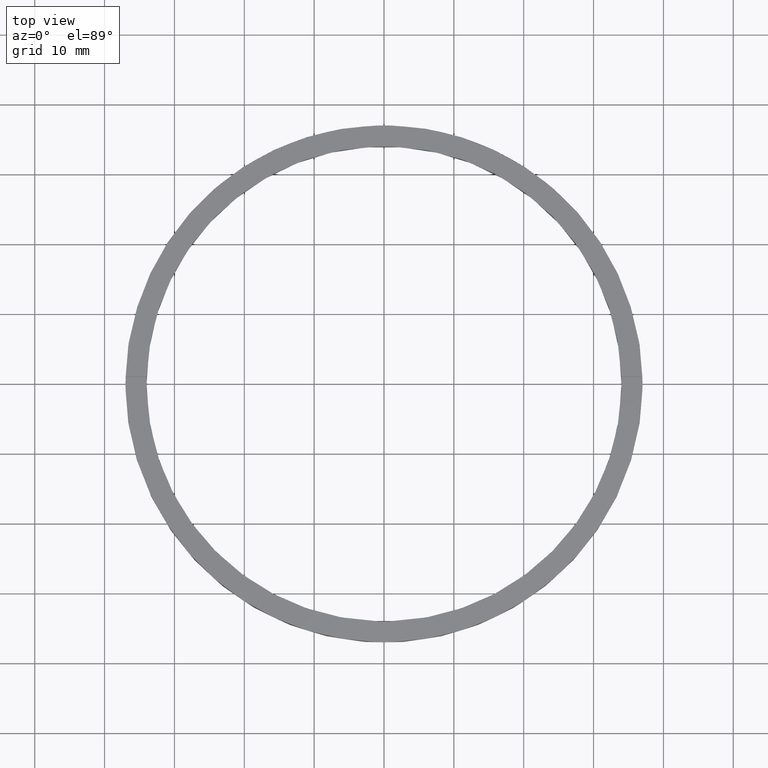
[diagram: clean part render]
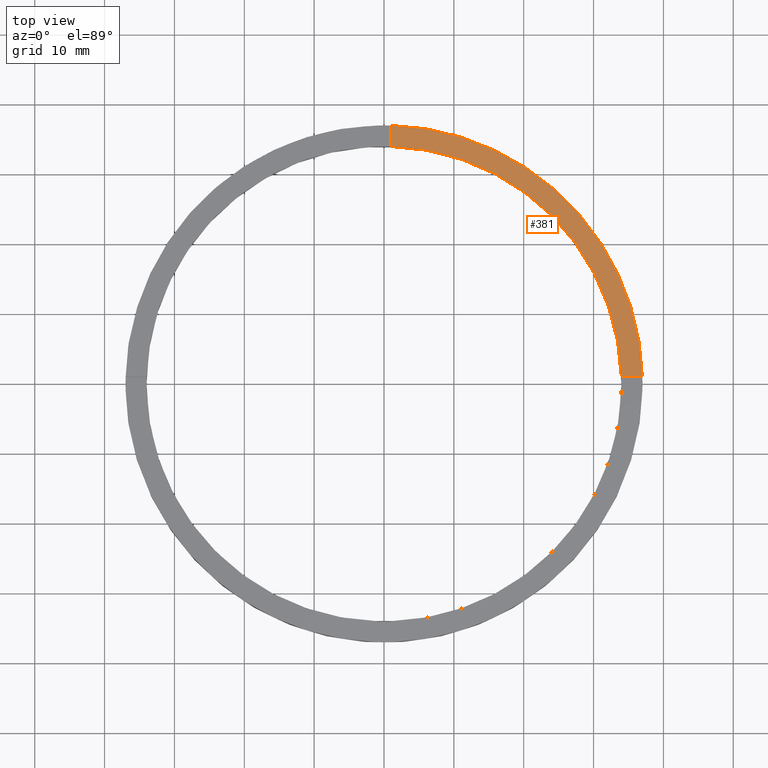
[diagram: same view with one face highlighted and labeled with its STEP entity id]
A machine part, top view. The second image highlights one B-rep face of the part: STEP entity #381.
In plain terms, the highlighted planar face has unit normal (0, 0, 1).
Its self-contained STEP definition (entity closure, byte-faithful):
#13 = CIRCLE ( 'NONE', #335, 34.00000000000000000 ) ;
#83 = VECTOR ( 'NONE', #625, 1000.000000000000000 ) ;
#87 = VECTOR ( 'NONE', #185, 1000.000000000000000 ) ;
#89 = LINE ( 'NONE', #305, #83 ) ;
#115 = VERTEX_POINT ( 'NONE', #705 ) ;
#127 = ORIENTED_EDGE ( 'NONE', *, *, #632, .F. ) ;
#140 = CARTESIAN_POINT ( 'NONE',  ( 0.9999999999999749090, 26.99999999999999645, 3.500000000000000000 ) ) ;
#161 = DIRECTION ( 'NONE',  ( 1.000000000000000000, 0.000000000000000000, 0.000000000000000000 ) ) ;
#185 = DIRECTION ( 'NONE',  ( 0.000000000000000000, 1.000000000000000000, 0.000000000000000000 ) ) ;
#211 = DIRECTION ( 'NONE',  ( 0.000000000000000000, 0.000000000000000000, 1.000000000000000000 ) ) ;
#216 = DIRECTION ( 'NONE',  ( 0.000000000000000000, 0.000000000000000000, 1.000000000000000000 ) ) ;
#220 = DIRECTION ( 'NONE',  ( 1.000000000000000000, 0.000000000000000000, -0.000000000000000000 ) ) ;
#261 = EDGE_CURVE ( 'NONE', #745, #492, #622, .T. ) ;
#280 = DIRECTION ( 'NONE',  ( 1.000000000000000000, 0.000000000000000000, 0.000000000000000000 ) ) ;
#297 = CARTESIAN_POINT ( 'NONE',  ( 0.000000000000000000, 0.000000000000000000, 3.500000000000000000 ) ) ;
#305 = CARTESIAN_POINT ( 'NONE',  ( 26.99999999999998934, 0.9999999999998416822, 3.500000000000000000 ) ) ;
#335 = AXIS2_PLACEMENT_3D ( 'NONE', #297, #216, #280 ) ;
#347 = AXIS2_PLACEMENT_3D ( 'NONE', #767, #211, #161 ) ;
#378 = ORIENTED_EDGE ( 'NONE', *, *, #261, .T. ) ;
#381 = ADVANCED_FACE ( 'NONE', ( #509 ), #661, .T. ) ;
#397 = VERTEX_POINT ( 'NONE', #752 ) ;
#401 = EDGE_LOOP ( 'NONE', ( #127, #656, #409, #378 ) ) ;
#409 = ORIENTED_EDGE ( 'NONE', *, *, #665, .F. ) ;
#476 = CARTESIAN_POINT ( 'NONE',  ( 0.9999999999999749090, 36.98648401781385786, 3.500000000000000000 ) ) ;
#492 = VERTEX_POINT ( 'NONE', #476 ) ;
#508 = AXIS2_PLACEMENT_3D ( 'NONE', #712, #743, #220 ) ;
#509 = FACE_OUTER_BOUND ( 'NONE', #401, .T. ) ;
#551 = EDGE_CURVE ( 'NONE', #397, #115, #13, .T. ) ;
#611 = LINE ( 'NONE', #140, #87 ) ;
#622 = CIRCLE ( 'NONE', #347, 37.00000000000000000 ) ;
#625 = DIRECTION ( 'NONE',  ( -1.000000000000000000, -6.505213034913025371E-17, -0.000000000000000000 ) ) ;
#632 = EDGE_CURVE ( 'NONE', #115, #492, #611, .T. ) ;
#656 = ORIENTED_EDGE ( 'NONE', *, *, #551, .F. ) ;
#661 = PLANE ( 'NONE',  #508 ) ;
#665 = EDGE_CURVE ( 'NONE', #745, #397, #89, .T. ) ;
#705 = CARTESIAN_POINT ( 'NONE',  ( 0.9999999999999749090, 33.98529093593285921, 3.500000000000000000 ) ) ;
#712 = CARTESIAN_POINT ( 'NONE',  ( 0.000000000000000000, 0.000000000000000000, 3.500000000000000000 ) ) ;
#723 = CARTESIAN_POINT ( 'NONE',  ( 36.98648401781386497, 0.9999999999998423483, 3.500000000000000000 ) ) ;
#743 = DIRECTION ( 'NONE',  ( 0.000000000000000000, 0.000000000000000000, 1.000000000000000000 ) ) ;
#745 = VERTEX_POINT ( 'NONE', #723 ) ;
#752 = CARTESIAN_POINT ( 'NONE',  ( 33.98529093593285921, 0.9999999999998421263, 3.500000000000000000 ) ) ;
#767 = CARTESIAN_POINT ( 'NONE',  ( 0.000000000000000000, 0.000000000000000000, 3.500000000000000000 ) ) ;